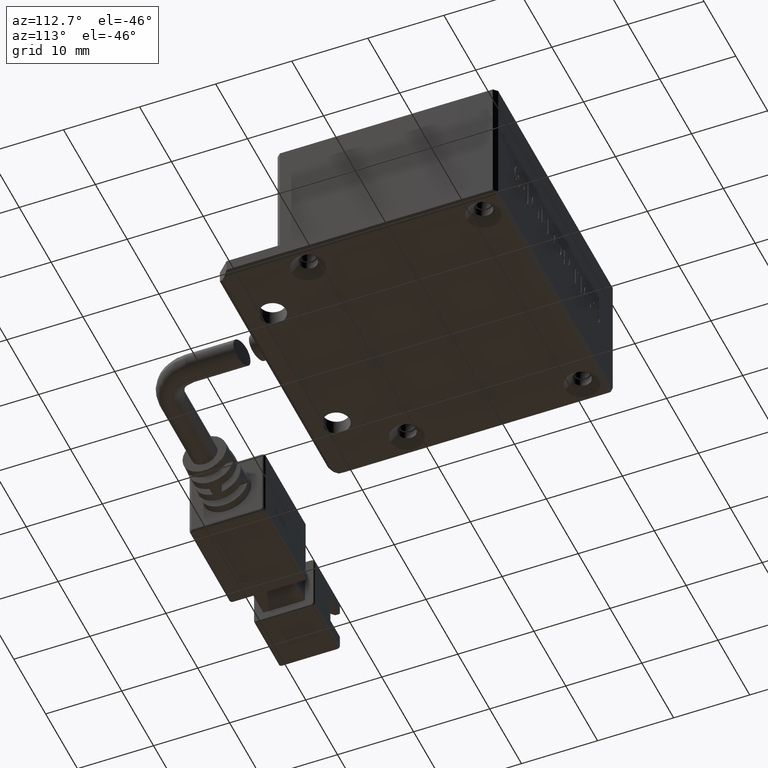
[diagram: clean part render]
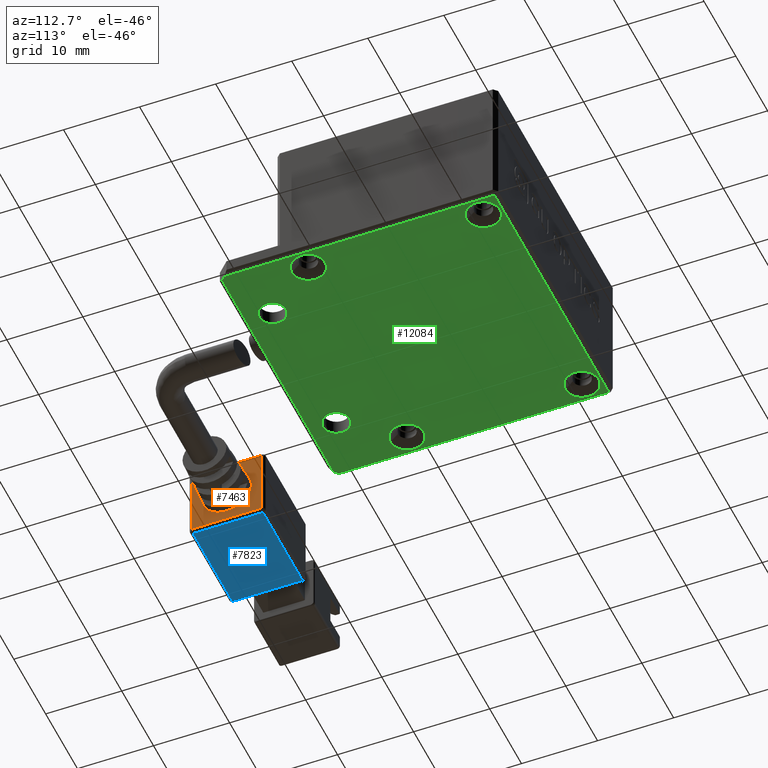
[diagram: same view with three faces highlighted in distinct colors, each labeled with its STEP entity id]
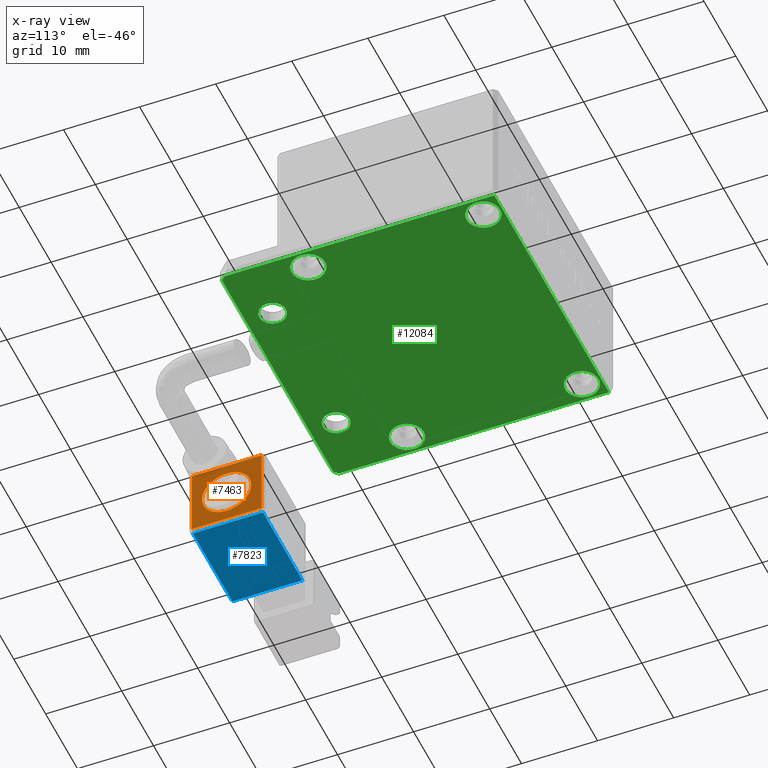
[diagram: x-ray of the same camera — body ghosted, the three highlighted faces saturated]
A machine part, auxiliary view with three faces highlighted in distinct colors.
The next image is the same camera in x-ray (body ghosted, the three faces saturated) — at least one of them is partly hidden behind the body in this view.
Their STEP definitions:

[orange] entity #7463 — the highlighted planar face has unit normal (-1, -0, -0).
#10 = AXIS2_PLACEMENT_3D ( 'NONE', #3684, #14603, #5245 ) ;
#89 = AXIS2_PLACEMENT_3D ( 'NONE', #13746, #4403, #15310 ) ;
#342 = ORIENTED_EDGE ( 'NONE', *, *, #683, .F. ) ;
#525 = EDGE_CURVE ( 'NONE', #1541, #5853, #19309, .T. ) ;
#683 = EDGE_CURVE ( 'NONE', #10048, #13620, #8138, .T. ) ;
#731 = ORIENTED_EDGE ( 'NONE', *, *, #3833, .F. ) ;
#1088 = EDGE_CURVE ( 'NONE', #5853, #17397, #3909, .T. ) ;
#1123 = CARTESIAN_POINT ( 'NONE',  ( -20.52940053455517600, -33.45364642993504100, 8.599999999983619900 ) ) ;
#1246 = FACE_OUTER_BOUND ( 'NONE', #9557, .T. ) ;
#1294 = CARTESIAN_POINT ( 'NONE',  ( -20.52940053455517600, -42.65364642993505100, 8.999999999983622000 ) ) ;
#1541 = VERTEX_POINT ( 'NONE', #7580 ) ;
#1969 = CARTESIAN_POINT ( 'NONE',  ( -20.52940053455517600, -43.05364642993505000, -0.6000000000163791000 ) ) ;
#2264 = VECTOR ( 'NONE', #3563, 1000.000000000000000 ) ;
#3401 = VECTOR ( 'NONE', #4113, 1000.000000000000000 ) ;
#3563 = DIRECTION ( 'NONE',  ( 6.162975822039154700E-033, -1.000000000000000000, -8.673617379884035500E-017 ) ) ;
#3684 = CARTESIAN_POINT ( 'NONE',  ( -20.52940053455517600, -38.05364642993505700, 3.999999999983630400 ) ) ;
#3730 = VECTOR ( 'NONE', #10227, 1000.000000000000000 ) ;
#3833 = EDGE_CURVE ( 'NONE', #13620, #10048, #4433, .T. ) ;
#3875 = DIRECTION ( 'NONE',  ( 0.0000000000000000000, -1.000000000000000000, 0.0000000000000000000 ) ) ;
#3909 = LINE ( 'NONE', #10125, #3401 ) ;
#4113 = DIRECTION ( 'NONE',  ( -6.162975822039154700E-033, 1.000000000000000000, 8.673617379884035500E-017 ) ) ;
#4403 = DIRECTION ( 'NONE',  ( -1.000000000000000000, -6.162975822039154700E-033, -5.345529420184391300E-049 ) ) ;
#4433 = CIRCLE ( 'NONE', #10, 3.249999999999010600 ) ;
#5245 = DIRECTION ( 'NONE',  ( 0.0000000000000000000, -1.000000000000000000, 0.0000000000000000000 ) ) ;
#5359 = DIRECTION ( 'NONE',  ( 1.000000000000000000, 6.162975822039154700E-033, 5.345529420184391300E-049 ) ) ;
#5853 = VERTEX_POINT ( 'NONE', #14203 ) ;
#5946 = EDGE_CURVE ( 'NONE', #11913, #1541, #10062, .T. ) ;
#7115 = EDGE_CURVE ( 'NONE', #17397, #11913, #19778, .T. ) ;
#7232 = EDGE_LOOP ( 'NONE', ( #342, #731 ) ) ;
#7419 = VECTOR ( 'NONE', #13487, 1000.000000000000000 ) ;
#7463 = ADVANCED_FACE ( 'NONE', ( #13251, #1246 ), #19809, .F. ) ;
#7580 = CARTESIAN_POINT ( 'NONE',  ( -20.52940053455517600, -42.65364642993198200, -0.6000000000163782100 ) ) ;
#8138 = CIRCLE ( 'NONE', #13008, 3.249999999999010600 ) ;
#9557 = EDGE_LOOP ( 'NONE', ( #17865, #14327, #11518, #14454 ) ) ;
#10048 = VERTEX_POINT ( 'NONE', #16307 ) ;
#10062 = LINE ( 'NONE', #1969, #2264 ) ;
#10125 = CARTESIAN_POINT ( 'NONE',  ( -20.52940053455517600, -43.05364642993505000, 8.599999999983621600 ) ) ;
#10227 = DIRECTION ( 'NONE',  ( 0.0000000000000000000, 8.673617379884035500E-017, -1.000000000000000000 ) ) ;
#11518 = ORIENTED_EDGE ( 'NONE', *, *, #525, .F. ) ;
#11817 = CARTESIAN_POINT ( 'NONE',  ( -20.52940053455517600, -33.45364642993504100, -1.000000000016379300 ) ) ;
#11913 = VERTEX_POINT ( 'NONE', #16505 ) ;
#13008 = AXIS2_PLACEMENT_3D ( 'NONE', #14416, #5359, #3875 ) ;
#13251 = FACE_BOUND ( 'NONE', #7232, .T. ) ;
#13487 = DIRECTION ( 'NONE',  ( 0.0000000000000000000, -8.673617379884035500E-017, 1.000000000000000000 ) ) ;
#13620 = VERTEX_POINT ( 'NONE', #15087 ) ;
#13746 = CARTESIAN_POINT ( 'NONE',  ( -20.52940053455517600, -43.05364642993505000, 8.999999999983622000 ) ) ;
#14203 = CARTESIAN_POINT ( 'NONE',  ( -20.52940053455517600, -42.65364642993505100, 8.599999999983621600 ) ) ;
#14327 = ORIENTED_EDGE ( 'NONE', *, *, #1088, .F. ) ;
#14416 = CARTESIAN_POINT ( 'NONE',  ( -20.52940053455517600, -38.05364642993505700, 3.999999999983630400 ) ) ;
#14454 = ORIENTED_EDGE ( 'NONE', *, *, #5946, .F. ) ;
#14603 = DIRECTION ( 'NONE',  ( 1.000000000000000000, 6.162975822039154700E-033, 5.345529420184391300E-049 ) ) ;
#15087 = CARTESIAN_POINT ( 'NONE',  ( -20.52940053455517600, -34.80364642993604500, 3.999999999983631300 ) ) ;
#15310 = DIRECTION ( 'NONE',  ( 6.162975822039154700E-033, -1.000000000000000000, -8.673617379884035500E-017 ) ) ;
#16307 = CARTESIAN_POINT ( 'NONE',  ( -20.52940053455517600, -41.30364642993406900, 3.999999999983630400 ) ) ;
#16505 = CARTESIAN_POINT ( 'NONE',  ( -20.52940053455517600, -33.45364642993504800, -0.6000000000163791000 ) ) ;
#17397 = VERTEX_POINT ( 'NONE', #1123 ) ;
#17865 = ORIENTED_EDGE ( 'NONE', *, *, #7115, .F. ) ;
#19309 = LINE ( 'NONE', #1294, #7419 ) ;
#19778 = LINE ( 'NONE', #11817, #3730 ) ;
#19809 = PLANE ( 'NONE',  #89 ) ;

[blue] entity #7823 — the highlighted planar face has unit normal (-0, 0, 1).
#884 = CARTESIAN_POINT ( 'NONE',  ( -33.52940053455518000, -33.45364642993504100, -1.000000000016379300 ) ) ;
#1015 = VECTOR ( 'NONE', #14131, 1000.000000000000000 ) ;
#1140 = CARTESIAN_POINT ( 'NONE',  ( -20.92940053455517800, -42.65364642993505100, -1.000000000016378500 ) ) ;
#2251 = PLANE ( 'NONE',  #12957 ) ;
#3115 = ORIENTED_EDGE ( 'NONE', *, *, #6079, .F. ) ;
#3271 = CARTESIAN_POINT ( 'NONE',  ( -33.52940053455518000, -42.65364642993504400, -1.000000000016378500 ) ) ;
#3358 = CARTESIAN_POINT ( 'NONE',  ( -20.92940053455517800, -33.45364642993504100, -1.000000000016379300 ) ) ;
#3469 = ORIENTED_EDGE ( 'NONE', *, *, #6511, .F. ) ;
#3716 = LINE ( 'NONE', #8430, #11525 ) ;
#3904 = CARTESIAN_POINT ( 'NONE',  ( -33.52940053455518000, -33.05364642993504300, -1.000000000016378500 ) ) ;
#5059 = VERTEX_POINT ( 'NONE', #17672 ) ;
#5457 = DIRECTION ( 'NONE',  ( -6.162975822039154700E-033, 1.000000000000000000, -1.232595164407830900E-032 ) ) ;
#5463 = CARTESIAN_POINT ( 'NONE',  ( -20.92940053455517800, -33.05364642993504300, -1.000000000016378500 ) ) ;
#5801 = CARTESIAN_POINT ( 'NONE',  ( -33.32940053455517000, -33.45364642993504100, -1.000000000016379300 ) ) ;
#5875 = VERTEX_POINT ( 'NONE', #3358 ) ;
#6079 = EDGE_CURVE ( 'NONE', #19692, #5875, #8650, .T. ) ;
#6511 = EDGE_CURVE ( 'NONE', #7965, #5059, #3716, .T. ) ;
#6663 = ORIENTED_EDGE ( 'NONE', *, *, #8915, .F. ) ;
#6946 = EDGE_CURVE ( 'NONE', #5059, #19692, #12992, .T. ) ;
#7823 = ADVANCED_FACE ( 'NONE', ( #14640 ), #2251, .F. ) ;
#7965 = VERTEX_POINT ( 'NONE', #5801 ) ;
#8430 = CARTESIAN_POINT ( 'NONE',  ( -33.32940053455517000, -33.05364642993504300, -1.000000000016378500 ) ) ;
#8650 = LINE ( 'NONE', #5463, #16906 ) ;
#8915 = EDGE_CURVE ( 'NONE', #5875, #7965, #11101, .T. ) ;
#10146 = DIRECTION ( 'NONE',  ( -1.000000000000000000, -6.162975822039154700E-033, -5.345529420184391300E-049 ) ) ;
#11101 = LINE ( 'NONE', #884, #18847 ) ;
#11525 = VECTOR ( 'NONE', #16180, 1000.000000000000000 ) ;
#12957 = AXIS2_PLACEMENT_3D ( 'NONE', #3904, #14827, #5457 ) ;
#12992 = LINE ( 'NONE', #3271, #1015 ) ;
#13265 = ORIENTED_EDGE ( 'NONE', *, *, #6946, .F. ) ;
#14131 = DIRECTION ( 'NONE',  ( 1.000000000000000000, 6.162975822039154700E-033, 5.345529420184391300E-049 ) ) ;
#14640 = FACE_OUTER_BOUND ( 'NONE', #17685, .T. ) ;
#14827 = DIRECTION ( 'NONE',  ( -5.345529420184392100E-049, 1.232595164407830900E-032, 1.000000000000000000 ) ) ;
#16180 = DIRECTION ( 'NONE',  ( 6.162975822039154700E-033, -1.000000000000000000, 1.232595164407830900E-032 ) ) ;
#16372 = DIRECTION ( 'NONE',  ( -6.162975822039154700E-033, 1.000000000000000000, -1.232595164407830900E-032 ) ) ;
#16906 = VECTOR ( 'NONE', #16372, 1000.000000000000000 ) ;
#17672 = CARTESIAN_POINT ( 'NONE',  ( -33.32940053455517000, -42.65364642993504400, -1.000000000016379300 ) ) ;
#17685 = EDGE_LOOP ( 'NONE', ( #3469, #6663, #3115, #13265 ) ) ;
#18847 = VECTOR ( 'NONE', #10146, 1000.000000000000000 ) ;
#19692 = VERTEX_POINT ( 'NONE', #1140 ) ;

[green] entity #12084 — the highlighted planar face has unit normal (0, -0, 1).
#104 = AXIS2_PLACEMENT_3D ( 'NONE', #15145, #5780, #16687 ) ;
#127 = DIRECTION ( 'NONE',  ( 1.368455531567204200E-047, -2.465190328815661900E-032, 1.000000000000000000 ) ) ;
#175 = DIRECTION ( 'NONE',  ( 1.368455531567204200E-047, -2.465190328815661900E-032, 1.000000000000000000 ) ) ;
#227 = CARTESIAN_POINT ( 'NONE',  ( 10.47059946544484400, -17.30364642993505700, -2.000000000016368700 ) ) ;
#410 = AXIS2_PLACEMENT_3D ( 'NONE', #15592, #6239, #17144 ) ;
#577 = ORIENTED_EDGE ( 'NONE', *, *, #9685, .T. ) ;
#878 = DIRECTION ( 'NONE',  ( 0.0000000000000000000, 1.000000000000000000, 0.0000000000000000000 ) ) ;
#1165 = EDGE_LOOP ( 'NONE', ( #9185, #16969 ) ) ;
#1226 = CIRCLE ( 'NONE', #410, 2.199999999948402800 ) ;
#1332 = CARTESIAN_POINT ( 'NONE',  ( 17.97059946544484500, -22.55364642993505300, -2.000000000016368700 ) ) ;
#1334 = EDGE_CURVE ( 'NONE', #5552, #14081, #14368, .T. ) ;
#1376 = DIRECTION ( 'NONE',  ( -1.110223024625158300E-016, 1.000000000000000000, 2.465190328815661900E-032 ) ) ;
#1455 = AXIS2_PLACEMENT_3D ( 'NONE', #18529, #9247, #20105 ) ;
#1603 = CARTESIAN_POINT ( 'NONE',  ( -17.02940053455514400, -22.55364642993505700, -2.000000000016369100 ) ) ;
#1630 = ORIENTED_EDGE ( 'NONE', *, *, #8996, .T. ) ;
#1672 = CIRCLE ( 'NONE', #17472, 2.199999999948402800 ) ;
#1943 = CARTESIAN_POINT ( 'NONE',  ( -17.52940053455516500, 13.44635357006494800, -2.000000000016368700 ) ) ;
#1948 = CIRCLE ( 'NONE', #14126, 2.200000000037532800 ) ;
#1973 = AXIS2_PLACEMENT_3D ( 'NONE', #9512, #175, #11084 ) ;
#1987 = CARTESIAN_POINT ( 'NONE',  ( 18.97059946544483500, 13.44635357006494800, -2.000000000016368700 ) ) ;
#2160 = CARTESIAN_POINT ( 'NONE',  ( -15.02940053455515300, -9.853646429897528600, -2.000000000082761800 ) ) ;
#2463 = CARTESIAN_POINT ( 'NONE',  ( -15.02940053455515300, -14.25364642997259400, -2.000000000082761800 ) ) ;
#2568 = ORIENTED_EDGE ( 'NONE', *, *, #10681, .T. ) ;
#2585 = DIRECTION ( 'NONE',  ( 1.368455531567204200E-047, -2.465190328815661900E-032, 1.000000000000000000 ) ) ;
#2791 = ORIENTED_EDGE ( 'NONE', *, *, #19293, .T. ) ;
#2836 = CARTESIAN_POINT ( 'NONE',  ( 18.97059946544484200, -22.55364642993505300, -2.000000000016368700 ) ) ;
#3179 = DIRECTION ( 'NONE',  ( 1.368455531567204200E-047, -2.465190328815661900E-032, 1.000000000000000000 ) ) ;
#3240 = VERTEX_POINT ( 'NONE', #5879 ) ;
#3347 = EDGE_LOOP ( 'NONE', ( #12335, #8406 ) ) ;
#3385 = CIRCLE ( 'NONE', #15695, 1.749999999999998000 ) ;
#3558 = CARTESIAN_POINT ( 'NONE',  ( -17.52940053455515800, -22.05364642993504600, -2.000000000016368700 ) ) ;
#3664 = FACE_BOUND ( 'NONE', #5548, .T. ) ;
#3797 = ORIENTED_EDGE ( 'NONE', *, *, #1334, .T. ) ;
#3826 = CARTESIAN_POINT ( 'NONE',  ( -15.02940053455515300, -12.05364642993506100, -2.000000000082761800 ) ) ;
#4103 = VERTEX_POINT ( 'NONE', #12353 ) ;
#4137 = AXIS2_PLACEMENT_3D ( 'NONE', #16251, #6896, #17771 ) ;
#4180 = EDGE_CURVE ( 'NONE', #9540, #5162, #15805, .T. ) ;
#4189 = AXIS2_PLACEMENT_3D ( 'NONE', #16241, #6887, #17757 ) ;
#4320 = CIRCLE ( 'NONE', #13027, 2.200000000037532800 ) ;
#4478 = CARTESIAN_POINT ( 'NONE',  ( -15.02940053455515800, 13.14635357001334100, -1.999999999969075200 ) ) ;
#4555 = CARTESIAN_POINT ( 'NONE',  ( 15.97059946544482400, 10.94635357006494500, -1.999999999969075200 ) ) ;
#4566 = EDGE_LOOP ( 'NONE', ( #2568, #7431 ) ) ;
#5128 = EDGE_CURVE ( 'NONE', #15214, #7134, #4320, .T. ) ;
#5162 = VERTEX_POINT ( 'NONE', #5584 ) ;
#5370 = VERTEX_POINT ( 'NONE', #14230 ) ;
#5384 = DIRECTION ( 'NONE',  ( 0.0000000000000000000, 1.000000000000000000, 0.0000000000000000000 ) ) ;
#5548 = EDGE_LOOP ( 'NONE', ( #3797, #10775 ) ) ;
#5552 = VERTEX_POINT ( 'NONE', #13303 ) ;
#5584 = CARTESIAN_POINT ( 'NONE',  ( -9.529400534555158200, -20.80364642993505300, -2.000000000016368700 ) ) ;
#5650 = VERTEX_POINT ( 'NONE', #7338 ) ;
#5780 = DIRECTION ( 'NONE',  ( 1.368455531567204200E-047, -2.465190328815661900E-032, 1.000000000000000000 ) ) ;
#5879 = CARTESIAN_POINT ( 'NONE',  ( 10.47059946544484400, -20.80364642993505000, -2.000000000016368700 ) ) ;
#5949 = VECTOR ( 'NONE', #14473, 1000.000000000000100 ) ;
#6101 = DIRECTION ( 'NONE',  ( 0.0000000000000000000, 1.000000000000000000, 0.0000000000000000000 ) ) ;
#6202 = VECTOR ( 'NONE', #15385, 1000.000000000000000 ) ;
#6239 = DIRECTION ( 'NONE',  ( 1.368455531567204200E-047, -2.465190328815661900E-032, 1.000000000000000000 ) ) ;
#6749 = ORIENTED_EDGE ( 'NONE', *, *, #9048, .F. ) ;
#6887 = DIRECTION ( 'NONE',  ( 1.368455531567204200E-047, -2.465190328815661900E-032, 1.000000000000000000 ) ) ;
#6896 = DIRECTION ( 'NONE',  ( 1.368455531567204200E-047, -2.465190328815661900E-032, 1.000000000000000000 ) ) ;
#7134 = VERTEX_POINT ( 'NONE', #2463 ) ;
#7209 = VECTOR ( 'NONE', #13774, 1000.000000000000000 ) ;
#7338 = CARTESIAN_POINT ( 'NONE',  ( 15.97059946544482400, 13.14635357001334800, -1.999999999969075200 ) ) ;
#7431 = ORIENTED_EDGE ( 'NONE', *, *, #12513, .T. ) ;
#7594 = CARTESIAN_POINT ( 'NONE',  ( -17.52940053455515800, -23.05364642993505700, -2.000000000016368700 ) ) ;
#7804 = FACE_BOUND ( 'NONE', #3347, .T. ) ;
#8150 = EDGE_CURVE ( 'NONE', #16732, #10349, #19190, .T. ) ;
#8164 = LINE ( 'NONE', #7594, #11845 ) ;
#8331 = VERTEX_POINT ( 'NONE', #11299 ) ;
#8365 = DIRECTION ( 'NONE',  ( 1.110223024625158300E-016, -1.000000000000000000, -2.465190328815661900E-032 ) ) ;
#8406 = ORIENTED_EDGE ( 'NONE', *, *, #18984, .T. ) ;
#8996 = EDGE_CURVE ( 'NONE', #13150, #15526, #19087, .T. ) ;
#9048 = EDGE_CURVE ( 'NONE', #13150, #5370, #14523, .T. ) ;
#9185 = ORIENTED_EDGE ( 'NONE', *, *, #8150, .T. ) ;
#9247 = DIRECTION ( 'NONE',  ( 1.368455531567204200E-047, -2.465190328815661900E-032, 1.000000000000000000 ) ) ;
#9298 = EDGE_CURVE ( 'NONE', #10428, #4103, #19844, .T. ) ;
#9315 = CARTESIAN_POINT ( 'NONE',  ( -15.02940053455515800, 10.94635357006493900, -1.999999999969075200 ) ) ;
#9355 = EDGE_CURVE ( 'NONE', #4103, #5370, #9623, .T. ) ;
#9396 = VECTOR ( 'NONE', #12960, 1000.000000000000000 ) ;
#9475 = CARTESIAN_POINT ( 'NONE',  ( -15.02940053455515800, 10.94635357006493900, -1.999999999969075200 ) ) ;
#9512 = CARTESIAN_POINT ( 'NONE',  ( -9.529400534555158200, -19.05364642993505700, -2.000000000016368700 ) ) ;
#9540 = VERTEX_POINT ( 'NONE', #18178 ) ;
#9623 = LINE ( 'NONE', #19200, #13812 ) ;
#9685 = EDGE_CURVE ( 'NONE', #8331, #10428, #8164, .T. ) ;
#9964 = EDGE_CURVE ( 'NONE', #8331, #15526, #14256, .T. ) ;
#10016 = EDGE_CURVE ( 'NONE', #5162, #9540, #19549, .T. ) ;
#10052 = ORIENTED_EDGE ( 'NONE', *, *, #9355, .T. ) ;
#10127 = ORIENTED_EDGE ( 'NONE', *, *, #4180, .T. ) ;
#10208 = DIRECTION ( 'NONE',  ( 1.368455531567204200E-047, -2.465190328815661900E-032, 1.000000000000000000 ) ) ;
#10349 = VERTEX_POINT ( 'NONE', #18809 ) ;
#10359 = CIRCLE ( 'NONE', #104, 1.749999999999998000 ) ;
#10428 = VERTEX_POINT ( 'NONE', #1943 ) ;
#10532 = VERTEX_POINT ( 'NONE', #19363 ) ;
#10578 = CIRCLE ( 'NONE', #14782, 2.200000000037532800 ) ;
#10595 = ORIENTED_EDGE ( 'NONE', *, *, #12149, .T. ) ;
#10681 = EDGE_CURVE ( 'NONE', #3240, #18677, #10359, .T. ) ;
#10739 = EDGE_CURVE ( 'NONE', #14081, #5552, #10578, .T. ) ;
#10775 = ORIENTED_EDGE ( 'NONE', *, *, #10739, .T. ) ;
#10886 = DIRECTION ( 'NONE',  ( 0.0000000000000000000, 1.000000000000000000, 0.0000000000000000000 ) ) ;
#11045 = DIRECTION ( 'NONE',  ( 0.0000000000000000000, 1.000000000000000000, 0.0000000000000000000 ) ) ;
#11084 = DIRECTION ( 'NONE',  ( 0.0000000000000000000, -1.000000000000000000, 0.0000000000000000000 ) ) ;
#11299 = CARTESIAN_POINT ( 'NONE',  ( -17.52940053455515800, -22.05364642993504600, -2.000000000016368700 ) ) ;
#11479 = FACE_OUTER_BOUND ( 'NONE', #16012, .T. ) ;
#11730 = EDGE_CURVE ( 'NONE', #10349, #16732, #14692, .T. ) ;
#11845 = VECTOR ( 'NONE', #1376, 1000.000000000000000 ) ;
#11945 = CARTESIAN_POINT ( 'NONE',  ( 10.47059946544484400, -19.05364642993505300, -2.000000000016368700 ) ) ;
#11971 = EDGE_LOOP ( 'NONE', ( #10595, #2791 ) ) ;
#11993 = FACE_BOUND ( 'NONE', #11971, .T. ) ;
#12084 = ADVANCED_FACE ( 'NONE', ( #16101, #11993, #7804, #3664, #19713, #15604, #11479 ), #13847, .F. ) ;
#12149 = EDGE_CURVE ( 'NONE', #5650, #10532, #1226, .T. ) ;
#12335 = ORIENTED_EDGE ( 'NONE', *, *, #5128, .T. ) ;
#12353 = CARTESIAN_POINT ( 'NONE',  ( 18.47059946544483100, 13.44635357006495500, -2.000000000016368700 ) ) ;
#12513 = EDGE_CURVE ( 'NONE', #18677, #3240, #3385, .T. ) ;
#12544 = CARTESIAN_POINT ( 'NONE',  ( 15.97059946544484400, -12.05364642993505700, -2.000000000082761800 ) ) ;
#12960 = DIRECTION ( 'NONE',  ( 1.000000000000000000, 1.110223024625158300E-016, -1.094764425253762900E-047 ) ) ;
#13027 = AXIS2_PLACEMENT_3D ( 'NONE', #19492, #10208, #878 ) ;
#13066 = ORIENTED_EDGE ( 'NONE', *, *, #9298, .T. ) ;
#13150 = VERTEX_POINT ( 'NONE', #18430 ) ;
#13303 = CARTESIAN_POINT ( 'NONE',  ( 15.97059946544484400, -9.853646429897525000, -2.000000000082761800 ) ) ;
#13310 = ORIENTED_EDGE ( 'NONE', *, *, #9964, .F. ) ;
#13510 = DIRECTION ( 'NONE',  ( 0.0000000000000000000, -1.000000000000000000, 0.0000000000000000000 ) ) ;
#13511 = AXIS2_PLACEMENT_3D ( 'NONE', #9475, #127, #11045 ) ;
#13774 = DIRECTION ( 'NONE',  ( -1.000000000000000000, -1.110223024625158300E-016, 1.094764425253762900E-047 ) ) ;
#13812 = VECTOR ( 'NONE', #8365, 1000.000000000000000 ) ;
#13847 = PLANE ( 'NONE',  #1455 ) ;
#13869 = EDGE_LOOP ( 'NONE', ( #14285, #10127 ) ) ;
#14081 = VERTEX_POINT ( 'NONE', #16118 ) ;
#14097 = DIRECTION ( 'NONE',  ( 0.0000000000000000000, 1.000000000000000000, 0.0000000000000000000 ) ) ;
#14126 = AXIS2_PLACEMENT_3D ( 'NONE', #3826, #14742, #5384 ) ;
#14230 = CARTESIAN_POINT ( 'NONE',  ( 18.47059946544484500, -22.05364642993505000, -2.000000000016368700 ) ) ;
#14256 = LINE ( 'NONE', #3558, #5949 ) ;
#14285 = ORIENTED_EDGE ( 'NONE', *, *, #10016, .T. ) ;
#14368 = CIRCLE ( 'NONE', #4137, 2.200000000037532800 ) ;
#14473 = DIRECTION ( 'NONE',  ( 0.7071067811865541200, -0.7071067811865408000, -1.743152798421033900E-032 ) ) ;
#14523 = LINE ( 'NONE', #1332, #6202 ) ;
#14692 = CIRCLE ( 'NONE', #13511, 2.199999999948402800 ) ;
#14742 = DIRECTION ( 'NONE',  ( 1.368455531567204200E-047, -2.465190328815661900E-032, 1.000000000000000000 ) ) ;
#14782 = AXIS2_PLACEMENT_3D ( 'NONE', #12544, #3179, #14097 ) ;
#15145 = CARTESIAN_POINT ( 'NONE',  ( 10.47059946544484400, -19.05364642993505300, -2.000000000016368700 ) ) ;
#15214 = VERTEX_POINT ( 'NONE', #2160 ) ;
#15385 = DIRECTION ( 'NONE',  ( 0.7071067811865392500, 0.7071067811865557900, 1.743152798421068700E-032 ) ) ;
#15457 = DIRECTION ( 'NONE',  ( 1.368455531567204200E-047, -2.465190328815661900E-032, 1.000000000000000000 ) ) ;
#15526 = VERTEX_POINT ( 'NONE', #1603 ) ;
#15592 = CARTESIAN_POINT ( 'NONE',  ( 15.97059946544482400, 10.94635357006494500, -1.999999999969075200 ) ) ;
#15604 = FACE_BOUND ( 'NONE', #13869, .T. ) ;
#15695 = AXIS2_PLACEMENT_3D ( 'NONE', #11945, #2585, #13510 ) ;
#15805 = CIRCLE ( 'NONE', #1973, 1.749999999999998000 ) ;
#16012 = EDGE_LOOP ( 'NONE', ( #13310, #577, #13066, #10052, #6749, #1630 ) ) ;
#16101 = FACE_BOUND ( 'NONE', #1165, .T. ) ;
#16118 = CARTESIAN_POINT ( 'NONE',  ( 15.97059946544484400, -14.25364642997259100, -2.000000000082761800 ) ) ;
#16241 = CARTESIAN_POINT ( 'NONE',  ( -9.529400534555158200, -19.05364642993505700, -2.000000000016368700 ) ) ;
#16251 = CARTESIAN_POINT ( 'NONE',  ( 15.97059946544484400, -12.05364642993505700, -2.000000000082761800 ) ) ;
#16687 = DIRECTION ( 'NONE',  ( 0.0000000000000000000, -1.000000000000000000, 0.0000000000000000000 ) ) ;
#16717 = AXIS2_PLACEMENT_3D ( 'NONE', #9315, #20169, #10886 ) ;
#16732 = VERTEX_POINT ( 'NONE', #4478 ) ;
#16969 = ORIENTED_EDGE ( 'NONE', *, *, #11730, .T. ) ;
#17144 = DIRECTION ( 'NONE',  ( 0.0000000000000000000, 1.000000000000000000, 0.0000000000000000000 ) ) ;
#17472 = AXIS2_PLACEMENT_3D ( 'NONE', #4555, #15457, #6101 ) ;
#17757 = DIRECTION ( 'NONE',  ( 0.0000000000000000000, -1.000000000000000000, 0.0000000000000000000 ) ) ;
#17771 = DIRECTION ( 'NONE',  ( 0.0000000000000000000, 1.000000000000000000, 0.0000000000000000000 ) ) ;
#18178 = CARTESIAN_POINT ( 'NONE',  ( -9.529400534555158200, -17.30364642993505700, -2.000000000016368700 ) ) ;
#18430 = CARTESIAN_POINT ( 'NONE',  ( 17.97059946544484500, -22.55364642993505300, -2.000000000016368700 ) ) ;
#18529 = CARTESIAN_POINT ( 'NONE',  ( 18.97059946544484200, -23.05364642993505300, -2.000000000016368700 ) ) ;
#18677 = VERTEX_POINT ( 'NONE', #227 ) ;
#18809 = CARTESIAN_POINT ( 'NONE',  ( -15.02940053455515800, 8.746353570116536200, -1.999999999969075200 ) ) ;
#18984 = EDGE_CURVE ( 'NONE', #7134, #15214, #1948, .T. ) ;
#19087 = LINE ( 'NONE', #2836, #7209 ) ;
#19190 = CIRCLE ( 'NONE', #16717, 2.199999999948402800 ) ;
#19200 = CARTESIAN_POINT ( 'NONE',  ( 18.47059946544483800, -23.05364642993505300, -2.000000000016368700 ) ) ;
#19293 = EDGE_CURVE ( 'NONE', #10532, #5650, #1672, .T. ) ;
#19363 = CARTESIAN_POINT ( 'NONE',  ( 15.97059946544482400, 8.746353570116543400, -1.999999999969075200 ) ) ;
#19492 = CARTESIAN_POINT ( 'NONE',  ( -15.02940053455515300, -12.05364642993506100, -2.000000000082761800 ) ) ;
#19549 = CIRCLE ( 'NONE', #4189, 1.749999999999998000 ) ;
#19713 = FACE_BOUND ( 'NONE', #4566, .T. ) ;
#19844 = LINE ( 'NONE', #1987, #9396 ) ;
#20105 = DIRECTION ( 'NONE',  ( 1.110223024625158300E-016, -1.000000000000000000, -2.465190328815661900E-032 ) ) ;
#20169 = DIRECTION ( 'NONE',  ( 1.368455531567204200E-047, -2.465190328815661900E-032, 1.000000000000000000 ) ) ;